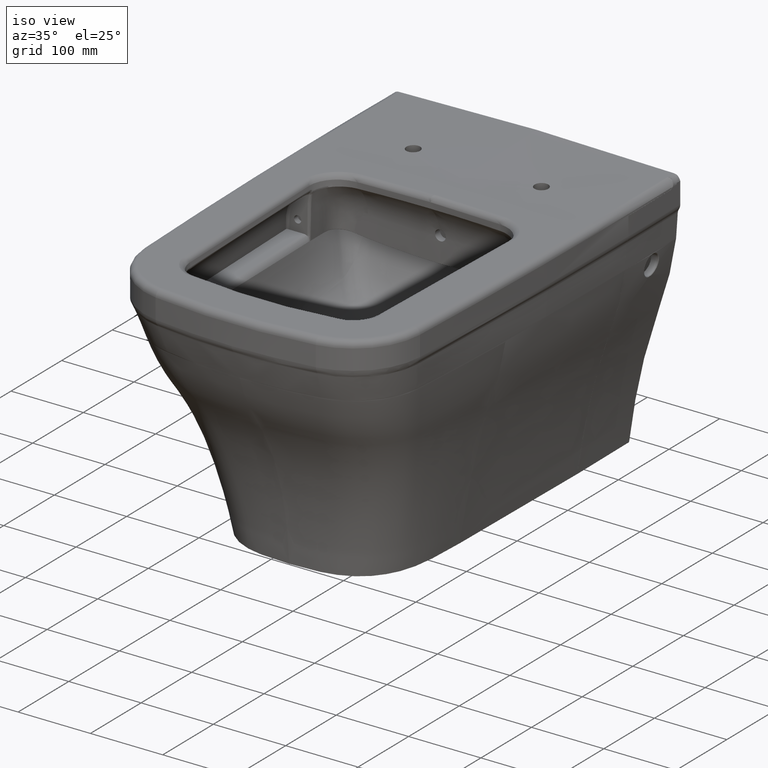
[diagram: clean part render]
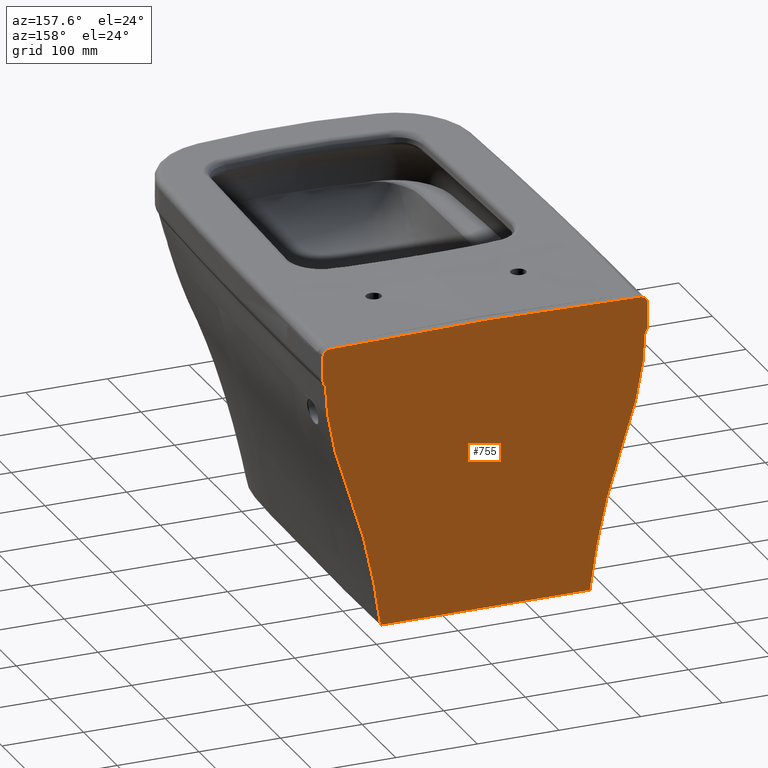
[diagram: tour spotlight — one face highlighted and labeled with its STEP entity id]
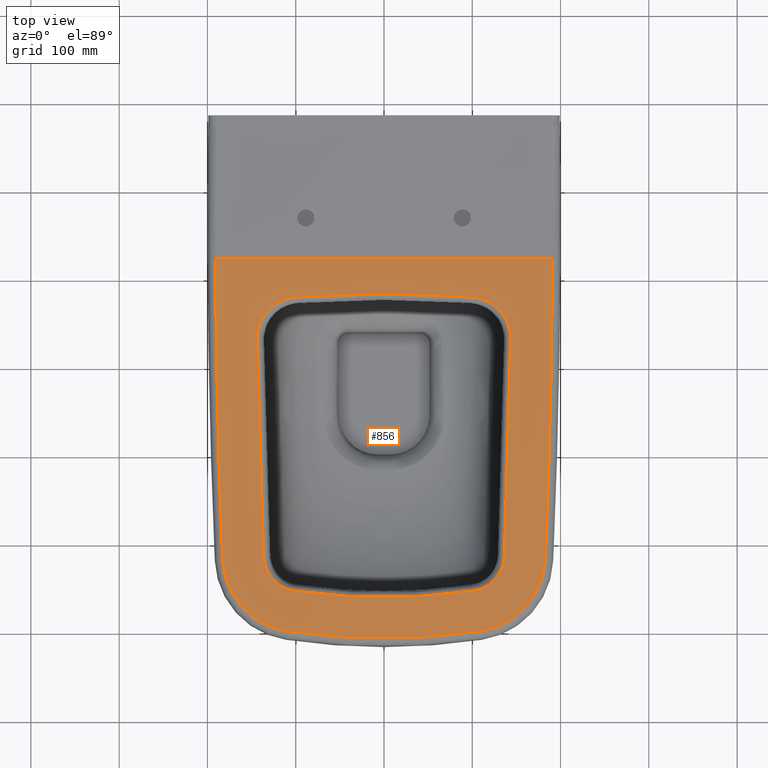
[diagram: tour spotlight — one face highlighted and labeled with its STEP entity id]
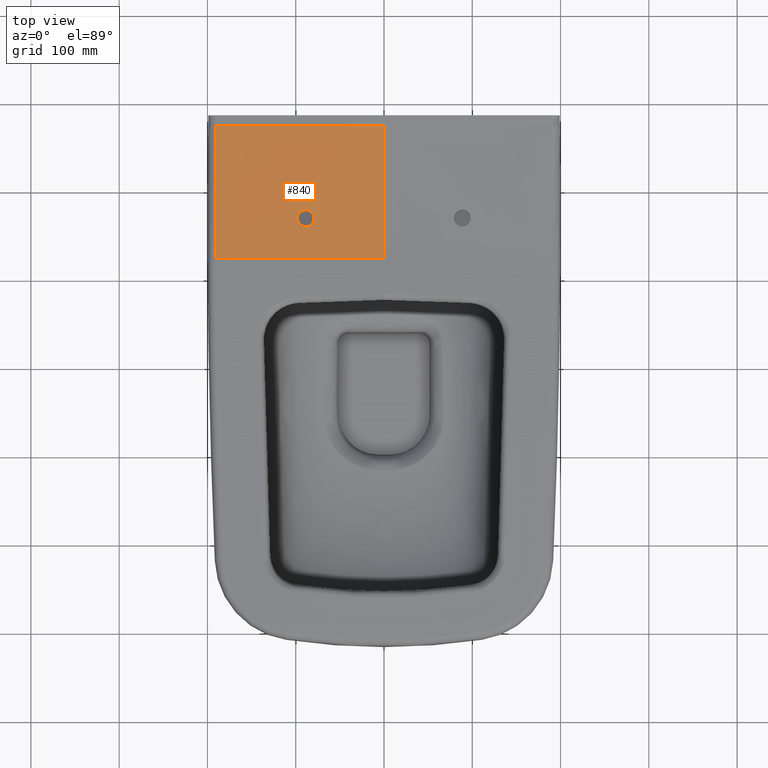
[diagram: tour spotlight — one face highlighted and labeled with its STEP entity id]
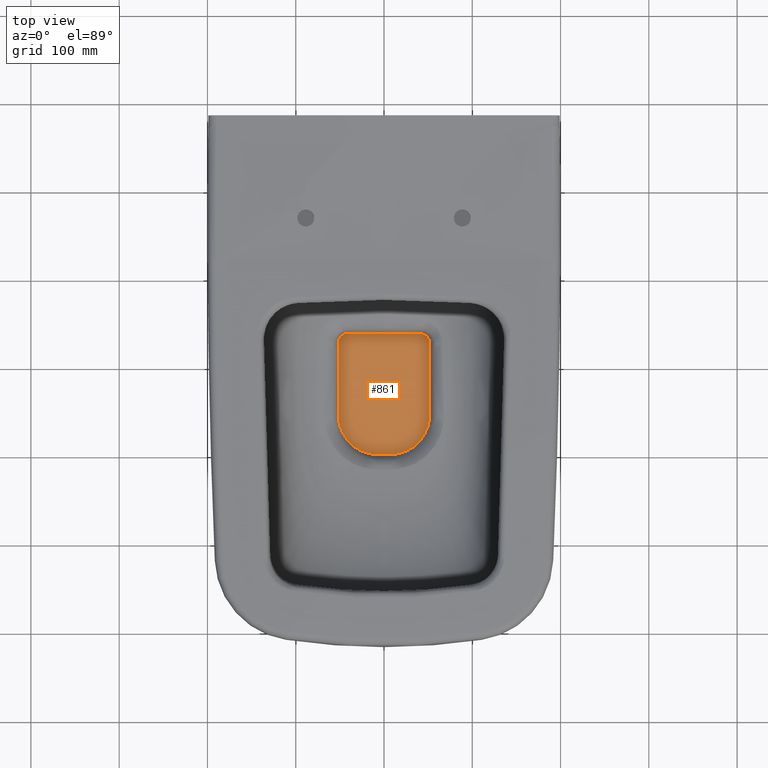
[diagram: tour spotlight — one face highlighted and labeled with its STEP entity id]
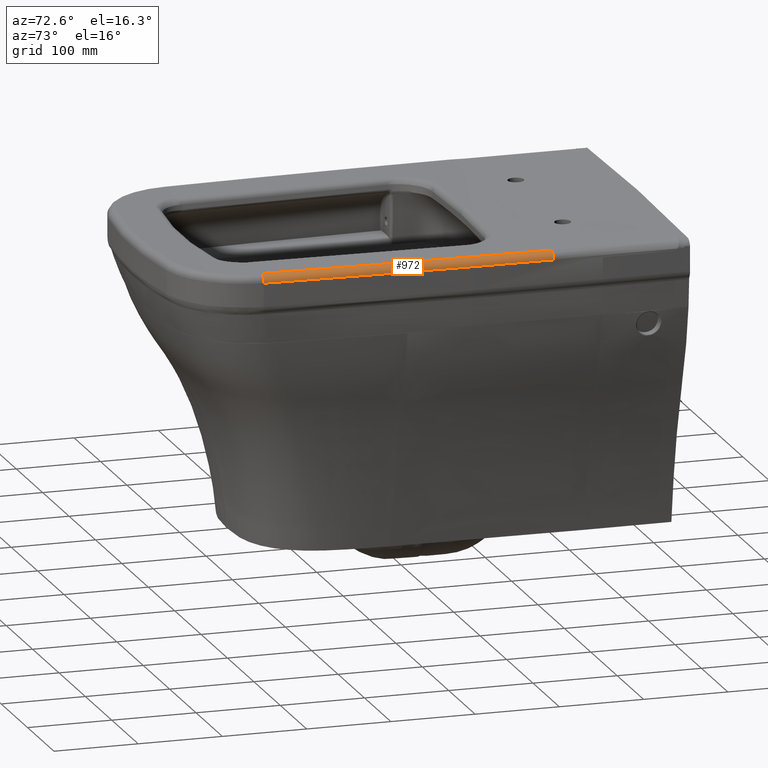
[diagram: tour spotlight — one face highlighted and labeled with its STEP entity id]
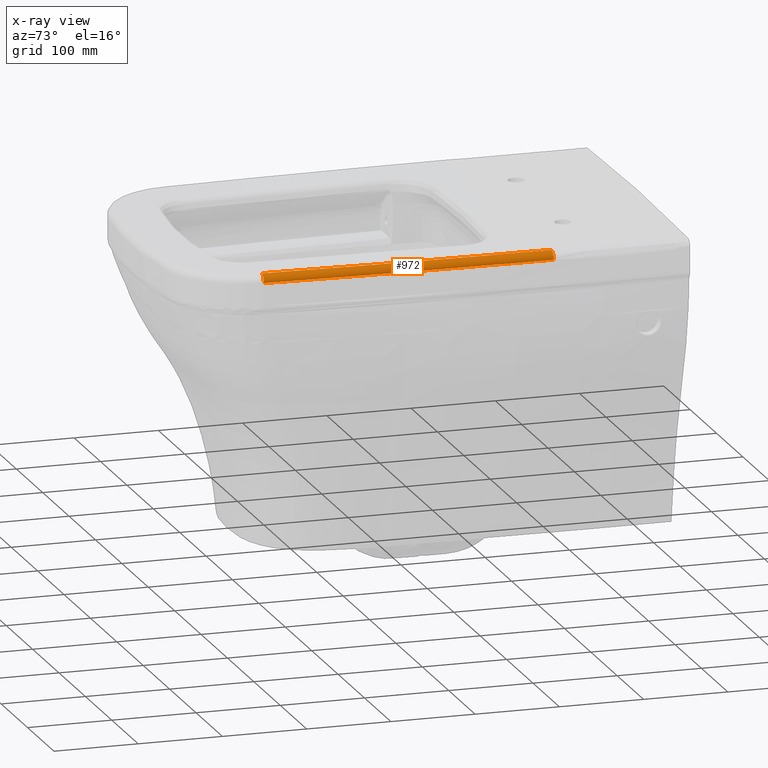
[diagram: x-ray of the same camera — body ghosted, this tour face saturated]
A machine part: a face-by-face anatomy tour. The part has 252 B-rep faces; the first image is the clean iso view, then the 5 largest visible faces are spotlighted one at a time (largest first), each with its STEP entity span.

Face 1 — auxiliary view, entity #755. In plain terms, the highlighted planar face has unit normal (0, 1, 0).
Definition (entity closure, byte-faithful):
#273=FACE_OUTER_BOUND('',#1061,.T.);
#555=PLANE('',#4179);
#662=LINE('',#4969,#700);
#665=LINE('',#6601,#703);
#666=LINE('',#6806,#704);
#673=LINE('',#23673,#711);
#674=LINE('',#23675,#712);
#700=VECTOR('',#4336,1.);
#703=VECTOR('',#4341,1.);
#704=VECTOR('',#4346,1.);
#711=VECTOR('',#4371,1.);
#712=VECTOR('',#4372,1.);
#755=ADVANCED_FACE('',(#273),#555,.T.);
#1061=EDGE_LOOP('',(#1432,#1433,#1434,#1435,#1436,#1437,#1438,#1439,#1440,
#1441,#1442,#1443,#1444,#1445,#1446,#1447,#1448));
#1432=ORIENTED_EDGE('',*,*,#3082,.F.);
#1433=ORIENTED_EDGE('',*,*,#3146,.T.);
#1434=ORIENTED_EDGE('',*,*,#3147,.T.);
#1435=ORIENTED_EDGE('',*,*,#3148,.T.);
#1436=ORIENTED_EDGE('',*,*,#3149,.T.);
#1437=ORIENTED_EDGE('',*,*,#3150,.T.);
#1438=ORIENTED_EDGE('',*,*,#3151,.T.);
#1439=ORIENTED_EDGE('',*,*,#3152,.F.);
#1440=ORIENTED_EDGE('',*,*,#3153,.T.);
#1441=ORIENTED_EDGE('',*,*,#3057,.T.);
#1442=ORIENTED_EDGE('',*,*,#3068,.F.);
#1443=ORIENTED_EDGE('',*,*,#3075,.T.);
#1444=ORIENTED_EDGE('',*,*,#3072,.F.);
#1445=ORIENTED_EDGE('',*,*,#3093,.F.);
#1446=ORIENTED_EDGE('',*,*,#3095,.F.);
#1447=ORIENTED_EDGE('',*,*,#3078,.F.);
#1448=ORIENTED_EDGE('',*,*,#3086,.F.);
#2635=VERTEX_POINT('',#4970);
#2636=VERTEX_POINT('',#4971);
#2645=VERTEX_POINT('',#5123);
#2649=VERTEX_POINT('',#6378);
#2650=VERTEX_POINT('',#6392);
#2653=VERTEX_POINT('',#6600);
#2654=VERTEX_POINT('',#6602);
#2656=VERTEX_POINT('',#6616);
#2658=VERTEX_POINT('',#6622);
#2666=VERTEX_POINT('',#6776);
#2706=VERTEX_POINT('',#23665);
#2707=VERTEX_POINT('',#23672);
#2708=VERTEX_POINT('',#23674);
#2709=VERTEX_POINT('',#23676);
#2710=VERTEX_POINT('',#23690);
#2711=VERTEX_POINT('',#23704);
#2712=VERTEX_POINT('',#23712);
#3057=EDGE_CURVE('',#2635,#2636,#662,.T.);
#3068=EDGE_CURVE('',#2645,#2636,#3712,.T.);
#3072=EDGE_CURVE('',#2649,#2650,#3715,.T.);
#3075=EDGE_CURVE('',#2645,#2650,#3717,.T.);
#3078=EDGE_CURVE('',#2653,#2654,#665,.T.);
#3082=EDGE_CURVE('',#2656,#2658,#3722,.T.);
#3086=EDGE_CURVE('',#2658,#2653,#3726,.T.);
#3093=EDGE_CURVE('',#2666,#2649,#3733,.T.);
#3095=EDGE_CURVE('',#2654,#2666,#666,.T.);
#3146=EDGE_CURVE('',#2656,#2706,#3776,.T.);
#3147=EDGE_CURVE('',#2706,#2707,#3777,.T.);
#3148=EDGE_CURVE('',#2707,#2708,#673,.T.);
#3149=EDGE_CURVE('',#2708,#2709,#674,.T.);
#3150=EDGE_CURVE('',#2709,#2710,#3778,.T.);
#3151=EDGE_CURVE('',#2710,#2711,#3779,.T.);
#3152=EDGE_CURVE('',#2712,#2711,#3780,.T.);
#3153=EDGE_CURVE('',#2712,#2635,#3781,.T.);
#3712=B_SPLINE_CURVE_WITH_KNOTS('',3,(#5125,#5126,#5127,#5128,#5129,#5130,
#5131,#5132,#5133,#5134,#5135,#5136,#5137,#5138,#5139,#5140,#5141,#5142,
#5143,#5144),.UNSPECIFIED.,.F.,.F.,(4,2,2,2,2,2,2,2,2,4),(0.,0.0625000000000001,
0.125,0.25,0.3125,0.375,0.5,0.75,0.875,1.),.UNSPECIFIED.);
#3715=B_SPLINE_CURVE_WITH_KNOTS('',3,(#6379,#6380,#6381,#6382,#6383,#6384,
#6385,#6386,#6387,#6388,#6389,#6390,#6391),.UNSPECIFIED.,.F.,.F.,(4,3,3,
3,4),(0.,0.227556644297989,0.526201724108742,0.79392497966776,1.),
 .UNSPECIFIED.);
#3717=B_SPLINE_CURVE_WITH_KNOTS('',3,(#6414,#6415,#6416,#6417,#6418,#6419,
#6420),.UNSPECIFIED.,.F.,.F.,(4,1,1,1,4),(0.,0.25151192418451,0.529408000276854,
0.807304076369195,1.),.UNSPECIFIED.);
#3722=B_SPLINE_CURVE_WITH_KNOTS('',3,(#6618,#6619,#6620,#6621),
 .UNSPECIFIED.,.F.,.F.,(4,4),(0.,1.),.UNSPECIFIED.);
#3726=B_SPLINE_CURVE_WITH_KNOTS('',3,(#6727,#6728,#6729,#6730,#6731,#6732),
 .UNSPECIFIED.,.F.,.F.,(4,2,4),(0.,0.5,1.),.UNSPECIFIED.);
#3733=B_SPLINE_CURVE_WITH_KNOTS('',3,(#6777,#6778,#6779,#6780,#6781,#6782,
#6783,#6784,#6785,#6786,#6787,#6788,#6789),.UNSPECIFIED.,.F.,.F.,(4,3,3,
3,4),(0.,0.251234334267057,0.519622181020064,0.780366170838746,1.),
 .UNSPECIFIED.);
#3776=B_SPLINE_CURVE_WITH_KNOTS('',3,(#23661,#23662,#23663,#23664),
 .UNSPECIFIED.,.F.,.F.,(4,4),(0.,1.),.UNSPECIFIED.);
#3777=B_SPLINE_CURVE_WITH_KNOTS('',3,(#23666,#23667,#23668,#23669,#23670,
#23671),.UNSPECIFIED.,.F.,.F.,(4,2,4),(0.,0.5,1.),.UNSPECIFIED.);
#3778=B_SPLINE_CURVE_WITH_KNOTS('',3,(#23677,#23678,#23679,#23680,#23681,
#23682,#23683,#23684,#23685,#23686,#23687,#23688,#23689),.UNSPECIFIED.,
 .F.,.F.,(4,3,3,3,4),(0.,0.251234334267057,0.519622181020064,0.780366170838746,
1.),.UNSPECIFIED.);
#3779=B_SPLINE_CURVE_WITH_KNOTS('',3,(#23691,#23692,#23693,#23694,#23695,
#23696,#23697,#23698,#23699,#23700,#23701,#23702,#23703),.UNSPECIFIED.,
 .F.,.F.,(4,3,3,3,4),(0.,0.227556644297989,0.526201724108742,0.79392497966776,
1.),.UNSPECIFIED.);
#3780=B_SPLINE_CURVE_WITH_KNOTS('',3,(#23705,#23706,#23707,#23708,#23709,
#23710,#23711),.UNSPECIFIED.,.F.,.F.,(4,1,1,1,4),(0.,0.25151192418451,0.529408000276854,
0.807304076369195,1.),.UNSPECIFIED.);
#3781=B_SPLINE_CURVE_WITH_KNOTS('',3,(#23713,#23714,#23715,#23716,#23717,
#23718,#23719,#23720,#23721,#23722,#23723,#23724,#23725,#23726,#23727,#23728,
#23729,#23730,#23731,#23732),.UNSPECIFIED.,.F.,.F.,(4,2,2,2,2,2,2,2,2,4),
(0.,0.0625000000000001,0.125,0.25,0.3125,0.375,0.5,0.75,0.875,1.),
 .UNSPECIFIED.);
#4179=AXIS2_PLACEMENT_3D('',#23733,#4373,#4374);
#4336=DIRECTION('',(-1.,0.,-5.64626817311097E-10));
#4341=DIRECTION('',(-1.,0.,0.));
#4346=DIRECTION('',(1.73905334577284E-12,1.37449303690041E-24,-1.));
#4371=DIRECTION('',(1.,0.,0.));
#4372=DIRECTION('',(-1.73905334577284E-12,1.37449303690041E-24,-1.));
#4373=DIRECTION('',(0.,1.,0.));
#4374=DIRECTION('',(0.,0.,1.));
#4969=CARTESIAN_POINT('',(-3.73287140572394,-19.1516366450091,-352.516830720236));
#4970=CARTESIAN_POINT('',(128.175881596622,-19.1516366450091,-352.5168307905));
#4971=CARTESIAN_POINT('',(-128.175881596622,-19.1516366450091,-352.5168307905));
#5123=CARTESIAN_POINT('',(-193.186945981987,-19.1516366450091,-80.3920429011705));
#5125=CARTESIAN_POINT('',(-193.186945981978,-19.1516366450091,-80.3920429011695));
#5126=CARTESIAN_POINT('',(-192.526668419043,-19.1516366450091,-86.1872146681649));
#5127=CARTESIAN_POINT('',(-191.69202566391,-19.1516366450091,-91.9493230786475));
#5128=CARTESIAN_POINT('',(-189.649978150868,-19.1516366450091,-103.40285627958));
#5129=CARTESIAN_POINT('',(-188.41618400478,-19.1516366450091,-109.08927707962));
#5130=CARTESIAN_POINT('',(-184.562541965806,-19.1516366450091,-126.119667814488));
#5131=CARTESIAN_POINT('',(-181.756667236041,-19.1516366450091,-137.442612741784));
#5132=CARTESIAN_POINT('',(-176.609093343651,-19.1516366450091,-154.202719167307));
#5133=CARTESIAN_POINT('',(-174.675052316592,-19.1516366450091,-159.719278960192));
#5134=CARTESIAN_POINT('',(-170.700855157187,-19.1516366450091,-170.718284244673));
#5135=CARTESIAN_POINT('',(-168.767010278996,-19.1516366450091,-176.234907096266));
#5136=CARTESIAN_POINT('',(-163.152931169172,-19.1516366450091,-192.845039590211));
#5137=CARTESIAN_POINT('',(-159.643460013409,-19.1516366450091,-203.993446817625));
#5138=CARTESIAN_POINT('',(-149.815806906382,-19.1516366450091,-237.663951695844));
#5139=CARTESIAN_POINT('',(-144.215978701187,-19.1516366450091,-260.383479791633));
#5140=CARTESIAN_POINT('',(-137.237421616818,-19.1516366450091,-294.74777168834));
#5141=CARTESIAN_POINT('',(-135.142945363315,-19.1516366450091,-306.260921252139));
#5142=CARTESIAN_POINT('',(-131.487088600085,-19.1516366450091,-329.362761255174));
#5143=CARTESIAN_POINT('',(-129.873685816217,-19.1516366450091,-340.946191279743));
#5144=CARTESIAN_POINT('',(-128.175881596622,-19.1516366450091,-352.516830790499));
#6378=CARTESIAN_POINT('',(-197.014081676712,-19.1516366450091,-43.1429258016953));
#6379=CARTESIAN_POINT('',(-197.0140816745,-19.1516366450091,-43.142925800163));
#6380=CARTESIAN_POINT('',(-196.810052255929,-19.1516366450091,-43.4375482446496));
#6381=CARTESIAN_POINT('',(-196.624551853945,-19.1516366450091,-43.745893544547));
#6382=CARTESIAN_POINT('',(-196.459857006086,-19.1516366450091,-44.0641795723999));
#6383=CARTESIAN_POINT('',(-196.243836023735,-19.1516366450091,-44.4816574795665));
#6384=CARTESIAN_POINT('',(-196.062375540646,-19.1516366450091,-44.9188762473842));
#6385=CARTESIAN_POINT('',(-195.91929916679,-19.1516366450091,-45.3666284322279));
#6386=CARTESIAN_POINT('',(-195.790948029072,-19.1516366450091,-45.7682985388436));
#6387=CARTESIAN_POINT('',(-195.692677775733,-19.1516366450091,-46.1808326987119));
#6388=CARTESIAN_POINT('',(-195.626156915286,-19.1516366450091,-46.597231382941));
#6389=CARTESIAN_POINT('',(-195.574934009631,-19.1516366450091,-46.91786990706));
#6390=CARTESIAN_POINT('',(-195.542295971083,-19.1516366450091,-47.2420297753863));
#6391=CARTESIAN_POINT('',(-195.528572079731,-19.1516366450091,-47.566443868821));
#6392=CARTESIAN_POINT('',(-195.528572085304,-19.1516366450091,-47.5664438690568));
#6414=CARTESIAN_POINT('',(-193.186945981978,-19.1516366450073,-80.3920429011694));
#6415=CARTESIAN_POINT('',(-193.531219971449,-19.1516366450078,-77.6535218106815));
#6416=CARTESIAN_POINT('',(-194.170401272627,-19.1516366450088,-71.8784982181896));
#6417=CARTESIAN_POINT('',(-194.875021806899,-19.1516366450099,-63.0458061419512));
#6418=CARTESIAN_POINT('',(-195.220798897122,-19.1516366450104,-54.8386867458318));
#6419=CARTESIAN_POINT('',(-195.439224314805,-19.1516366450108,-49.6791527619077));
#6420=CARTESIAN_POINT('',(-195.528596171016,-19.1516366450109,-47.5664448879316));
#6600=CARTESIAN_POINT('',(-198.790471555529,-19.1516366450091,-6.79487860276003));
#6601=CARTESIAN_POINT('',(-199.004713852666,-19.1516366450091,-6.79487860276003));
#6602=CARTESIAN_POINT('',(-199.004713852666,-19.1516366450091,-6.79487860276003));
#6616=CARTESIAN_POINT('',(6.77859452771527E-11,-19.1516366450091,3.60751349023347));
#6618=CARTESIAN_POINT('',(6.77859452771527E-11,-19.1516366450091,3.60751349023347));
#6619=CARTESIAN_POINT('',(-63.439308148126,-19.1516366450091,2.82464895329727));
#6620=CARTESIAN_POINT('',(-126.880008974553,-19.1516366450091,1.97105722022415));
#6621=CARTESIAN_POINT('',(-190.299709650744,-19.1516366450091,0.207888477426983));
#6622=CARTESIAN_POINT('',(-190.299709650744,-19.1516366450091,0.207888477426976));
#6727=CARTESIAN_POINT('',(-190.299709650739,-19.1516366450091,0.207888477323722));
#6728=CARTESIAN_POINT('',(-192.276347384898,-19.1516366450091,0.152934798312214));
#6729=CARTESIAN_POINT('',(-194.220761675074,-19.1516366450091,-0.572963547082999));
#6730=CARTESIAN_POINT('',(-197.287691374331,-19.1516366450091,-3.10689779775548));
#6731=CARTESIAN_POINT('',(-198.359248642495,-19.1516366450091,-4.85939056420926));
#6732=CARTESIAN_POINT('',(-198.790471555589,-19.1516366450091,-6.79487860273758));
#6776=CARTESIAN_POINT('',(-199.004713852607,-19.1516366450091,-36.7720645129363));
#6777=CARTESIAN_POINT('',(-199.004713849471,-19.1516366450091,-36.7720645129363));
#6778=CARTESIAN_POINT('',(-199.00471266273,-19.1516366450091,-37.3391166208225));
#6779=CARTESIAN_POINT('',(-198.961358836764,-19.1516366450091,-37.907799700927));
#6780=CARTESIAN_POINT('',(-198.875400829085,-19.1516366450091,-38.4682988659357));
#6781=CARTESIAN_POINT('',(-198.783589995213,-19.1516366450091,-39.0669620633879));
#6782=CARTESIAN_POINT('',(-198.642552876922,-19.1516366450091,-39.6600852815964));
#6783=CARTESIAN_POINT('',(-198.455065620622,-19.1516366450091,-40.2359979328942));
#6784=CARTESIAN_POINT('',(-198.272884384242,-19.1516366450091,-40.7956118550887));
#6785=CARTESIAN_POINT('',(-198.045716531088,-19.1516366450091,-41.3424972397189));
#6786=CARTESIAN_POINT('',(-197.777784926748,-19.1516366450091,-41.8664918963697));
#6787=CARTESIAN_POINT('',(-197.55205742419,-19.1516366450091,-42.3079478623109));
#6788=CARTESIAN_POINT('',(-197.296364154249,-19.1516366450091,-42.7353072567853));
#6789=CARTESIAN_POINT('',(-197.014082960393,-19.1516366450091,-43.1429266906591));
#6806=CARTESIAN_POINT('',(-199.004713852679,-19.1516366450091,-3.46079813450263E-10));
#23661=CARTESIAN_POINT('',(-6.77859452771527E-11,-19.1516366450091,3.60751349023347));
#23662=CARTESIAN_POINT('',(63.4393081480808,-19.1516366450091,2.82464895329783));
#23663=CARTESIAN_POINT('',(126.880008974598,-19.1516366450091,1.9710572202229));
#23664=CARTESIAN_POINT('',(190.299709650744,-19.1516366450091,0.207888477426983));
#23665=CARTESIAN_POINT('',(190.299709650744,-19.1516366450091,0.207888477426976));
#23666=CARTESIAN_POINT('',(190.299709650739,-19.1516366450091,0.207888477323722));
#23667=CARTESIAN_POINT('',(192.276347384898,-19.1516366450091,0.152934798312214));
#23668=CARTESIAN_POINT('',(194.220761675074,-19.1516366450091,-0.572963547082999));
#23669=CARTESIAN_POINT('',(197.287691374331,-19.1516366450091,-3.10689779775548));
#23670=CARTESIAN_POINT('',(198.359248642495,-19.1516366450091,-4.85939056420926));
#23671=CARTESIAN_POINT('',(198.790471555589,-19.1516366450091,-6.79487860273758));
#23672=CARTESIAN_POINT('',(198.790471555529,-19.1516366450091,-6.79487860276003));
#23673=CARTESIAN_POINT('',(199.004713852666,-19.1516366450091,-6.79487860276003));
#23674=CARTESIAN_POINT('',(199.004713852666,-19.1516366450091,-6.79487860276003));
#23675=CARTESIAN_POINT('',(199.004713852679,-19.1516366450091,-3.46079813450263E-10));
#23676=CARTESIAN_POINT('',(199.004713852607,-19.1516366450091,-36.7720645129363));
#23677=CARTESIAN_POINT('',(199.004713849471,-19.1516366450091,-36.7720645129363));
#23678=CARTESIAN_POINT('',(199.00471266273,-19.1516366450091,-37.3391166208225));
#23679=CARTESIAN_POINT('',(198.961358836764,-19.1516366450091,-37.907799700927));
#23680=CARTESIAN_POINT('',(198.875400829085,-19.1516366450091,-38.4682988659357));
#23681=CARTESIAN_POINT('',(198.783589995213,-19.1516366450091,-39.0669620633879));
#23682=CARTESIAN_POINT('',(198.642552876922,-19.1516366450091,-39.6600852815964));
#23683=CARTESIAN_POINT('',(198.455065620622,-19.1516366450091,-40.2359979328942));
#23684=CARTESIAN_POINT('',(198.272884384242,-19.1516366450091,-40.7956118550887));
#23685=CARTESIAN_POINT('',(198.045716531088,-19.1516366450091,-41.3424972397189));
#23686=CARTESIAN_POINT('',(197.777784926748,-19.1516366450091,-41.8664918963697));
#23687=CARTESIAN_POINT('',(197.55205742419,-19.1516366450091,-42.3079478623109));
#23688=CARTESIAN_POINT('',(197.296364154249,-19.1516366450091,-42.7353072567853));
#23689=CARTESIAN_POINT('',(197.014082960393,-19.1516366450091,-43.1429266906591));
#23690=CARTESIAN_POINT('',(197.014081676712,-19.1516366450091,-43.1429258016953));
#23691=CARTESIAN_POINT('',(197.0140816745,-19.1516366450091,-43.142925800163));
#23692=CARTESIAN_POINT('',(196.810052255929,-19.1516366450091,-43.4375482446496));
#23693=CARTESIAN_POINT('',(196.624551853945,-19.1516366450091,-43.745893544547));
#23694=CARTESIAN_POINT('',(196.459857006086,-19.1516366450091,-44.0641795723999));
#23695=CARTESIAN_POINT('',(196.243836023735,-19.1516366450091,-44.4816574795665));
#23696=CARTESIAN_POINT('',(196.062375540646,-19.1516366450091,-44.9188762473842));
#23697=CARTESIAN_POINT('',(195.91929916679,-19.1516366450091,-45.3666284322279));
#23698=CARTESIAN_POINT('',(195.790948029072,-19.1516366450091,-45.7682985388436));
#23699=CARTESIAN_POINT('',(195.692677775733,-19.1516366450091,-46.1808326987119));
#23700=CARTESIAN_POINT('',(195.626156915286,-19.1516366450091,-46.597231382941));
#23701=CARTESIAN_POINT('',(195.574934009631,-19.1516366450091,-46.91786990706));
#23702=CARTESIAN_POINT('',(195.542295971083,-19.1516366450091,-47.2420297753863));
#23703=CARTESIAN_POINT('',(195.528572079731,-19.1516366450091,-47.566443868821));
#23704=CARTESIAN_POINT('',(195.528572085304,-19.1516366450091,-47.5664438690568));
#23705=CARTESIAN_POINT('',(193.186945981978,-19.1516366450073,-80.3920429011694));
#23706=CARTESIAN_POINT('',(193.531219971449,-19.1516366450078,-77.6535218106815));
#23707=CARTESIAN_POINT('',(194.170401272627,-19.1516366450088,-71.8784982181896));
#23708=CARTESIAN_POINT('',(194.875021806899,-19.1516366450099,-63.0458061419512));
#23709=CARTESIAN_POINT('',(195.220798897122,-19.1516366450104,-54.8386867458318));
#23710=CARTESIAN_POINT('',(195.439224314805,-19.1516366450108,-49.6791527619077));
#23711=CARTESIAN_POINT('',(195.528596171016,-19.1516366450109,-47.5664448879316));
#23712=CARTESIAN_POINT('',(193.186945981987,-19.1516366450091,-80.3920429011705));
#23713=CARTESIAN_POINT('',(193.186945981978,-19.1516366450091,-80.3920429011695));
#23714=CARTESIAN_POINT('',(192.526668419043,-19.1516366450091,-86.1872146681649));
#23715=CARTESIAN_POINT('',(191.69202566391,-19.1516366450091,-91.9493230786475));
#23716=CARTESIAN_POINT('',(189.649978150868,-19.1516366450091,-103.40285627958));
#23717=CARTESIAN_POINT('',(188.41618400478,-19.1516366450091,-109.08927707962));
#23718=CARTESIAN_POINT('',(184.562541965806,-19.1516366450091,-126.119667814488));
#23719=CARTESIAN_POINT('',(181.756667236041,-19.1516366450091,-137.442612741784));
#23720=CARTESIAN_POINT('',(176.609093343651,-19.1516366450091,-154.202719167307));
#23721=CARTESIAN_POINT('',(174.675052316592,-19.1516366450091,-159.719278960192));
#23722=CARTESIAN_POINT('',(170.700855157187,-19.1516366450091,-170.718284244673));
#23723=CARTESIAN_POINT('',(168.767010278996,-19.1516366450091,-176.234907096266));
#23724=CARTESIAN_POINT('',(163.152931169172,-19.1516366450091,-192.845039590211));
#23725=CARTESIAN_POINT('',(159.643460013409,-19.1516366450091,-203.993446817625));
#23726=CARTESIAN_POINT('',(149.815806906382,-19.1516366450091,-237.663951695844));
#23727=CARTESIAN_POINT('',(144.215978701187,-19.1516366450091,-260.383479791633));
#23728=CARTESIAN_POINT('',(137.237421616818,-19.1516366450091,-294.74777168834));
#23729=CARTESIAN_POINT('',(135.142945363315,-19.1516366450091,-306.260921252139));
#23730=CARTESIAN_POINT('',(131.487088600085,-19.1516366450091,-329.362761255174));
#23731=CARTESIAN_POINT('',(129.873685816217,-19.1516366450091,-340.946191279743));
#23732=CARTESIAN_POINT('',(128.175881596622,-19.1516366450091,-352.516830790499));
#23733=CARTESIAN_POINT('',(-175.059992623106,-19.1516366450091,-263.727407815067));

Face 2 — top view, entity #856. In plain terms, the highlighted planar face has unit normal (0, 0, 1).
Definition (entity closure, byte-faithful):
#85=CIRCLE('',#4230,86.170786516854);
#91=CIRCLE('',#4238,8583.93238205812);
#94=CIRCLE('',#4246,738.202644386491);
#95=CIRCLE('',#4248,691.797968429393);
#98=CIRCLE('',#4253,86.170786516854);
#99=CIRCLE('',#4254,8583.93238205812);
#572=PLANE('',#4255);
#856=ADVANCED_FACE('',(#1018,#1019),#572,.T.);
#1018=FACE_BOUND('',#1167,.T.);
#1019=FACE_BOUND('',#1168,.T.);
#1167=EDGE_LOOP('',(#1957,#1958,#1959,#1960,#1961,#1962,#1963));
#1168=EDGE_LOOP('',(#1964,#1965,#1966,#1967,#1968,#1969,#1970,#1971,#1972));
#1957=ORIENTED_EDGE('',*,*,#3409,.T.);
#1958=ORIENTED_EDGE('',*,*,#3381,.F.);
#1959=ORIENTED_EDGE('',*,*,#3389,.F.);
#1960=ORIENTED_EDGE('',*,*,#3314,.F.);
#1961=ORIENTED_EDGE('',*,*,#3403,.T.);
#1962=ORIENTED_EDGE('',*,*,#3410,.T.);
#1963=ORIENTED_EDGE('',*,*,#3411,.T.);
#1964=ORIENTED_EDGE('',*,*,#3341,.T.);
#1965=ORIENTED_EDGE('',*,*,#3412,.F.);
#1966=ORIENTED_EDGE('',*,*,#3413,.F.);
#1967=ORIENTED_EDGE('',*,*,#3414,.F.);
#1968=ORIENTED_EDGE('',*,*,#3415,.F.);
#1969=ORIENTED_EDGE('',*,*,#3404,.T.);
#1970=ORIENTED_EDGE('',*,*,#3328,.T.);
#1971=ORIENTED_EDGE('',*,*,#3283,.T.);
#1972=ORIENTED_EDGE('',*,*,#3342,.T.);
#2787=VERTEX_POINT('',#34812);
#2790=VERTEX_POINT('',#34820);
#2809=VERTEX_POINT('',#35175);
#2810=VERTEX_POINT('',#35177);
#2816=VERTEX_POINT('',#35331);
#2823=VERTEX_POINT('',#35851);
#2826=VERTEX_POINT('',#35899);
#2853=VERTEX_POINT('',#37432);
#2856=VERTEX_POINT('',#37457);
#2866=VERTEX_POINT('',#38624);
#2867=VERTEX_POINT('',#38628);
#2870=VERTEX_POINT('',#38698);
#2871=VERTEX_POINT('',#38700);
#2872=VERTEX_POINT('',#38716);
#2873=VERTEX_POINT('',#38731);
#2874=VERTEX_POINT('',#38736);
#3283=EDGE_CURVE('',#2787,#2790,#3869,.T.);
#3314=EDGE_CURVE('',#2809,#2810,#85,.T.);
#3328=EDGE_CURVE('',#2816,#2787,#3897,.T.);
#3341=EDGE_CURVE('',#2823,#2826,#3907,.T.);
#3342=EDGE_CURVE('',#2790,#2823,#3908,.T.);
#3381=EDGE_CURVE('',#2856,#2853,#3946,.T.);
#3389=EDGE_CURVE('',#2810,#2856,#91,.T.);
#3403=EDGE_CURVE('',#2809,#2866,#94,.T.);
#3404=EDGE_CURVE('',#2867,#2816,#95,.T.);
#3409=EDGE_CURVE('',#2870,#2853,#3967,.T.);
#3410=EDGE_CURVE('',#2866,#2871,#98,.T.);
#3411=EDGE_CURVE('',#2871,#2870,#99,.T.);
#3412=EDGE_CURVE('',#2872,#2826,#3968,.T.);
#3413=EDGE_CURVE('',#2873,#2872,#3969,.T.);
#3414=EDGE_CURVE('',#2874,#2873,#3970,.T.);
#3415=EDGE_CURVE('',#2867,#2874,#3971,.T.);
#3869=B_SPLINE_CURVE_WITH_KNOTS('',3,(#34821,#34822,#34823,#34824),
 .UNSPECIFIED.,.F.,.F.,(4,4),(0.,1.),.UNSPECIFIED.);
#3897=B_SPLINE_CURVE_WITH_KNOTS('',3,(#35355,#35356,#35357,#35358,#35359,
#35360,#35361,#35362,#35363,#35364),.UNSPECIFIED.,.F.,.F.,(4,2,2,2,4),(0.,
0.25,0.5,0.75,1.),.UNSPECIFIED.);
#3907=B_SPLINE_CURVE_WITH_KNOTS('',3,(#35900,#35901,#35902,#35903,#35904,
#35905,#35906,#35907,#35908,#35909,#35910,#35911,#35912,#35913),
 .UNSPECIFIED.,.F.,.F.,(4,2,2,2,2,2,4),(0.,0.25,0.5,0.625,0.75,0.875,1.),
 .UNSPECIFIED.);
#3908=B_SPLINE_CURVE_WITH_KNOTS('',3,(#35992,#35993,#35994,#35995,#35996,
#35997,#35998,#35999,#36000,#36001,#36002,#36003,#36004,#36005),
 .UNSPECIFIED.,.F.,.F.,(4,2,2,2,2,2,4),(0.,0.250000000000002,0.375000000000001,
0.500000000000001,0.625000000000001,0.75,1.),.UNSPECIFIED.);
#3946=B_SPLINE_CURVE_WITH_KNOTS('',3,(#37458,#37459,#37460,#37461,#37462,
#37463,#37464,#37465,#37466,#37467,#37468),.UNSPECIFIED.,.F.,.F.,(4,1,1,
1,1,1,1,1,4),(0.,0.0312498276535618,0.0624998332131238,0.124999844332249,
0.249999866570499,0.37499988880875,0.499999911047,0.749999955523499,1.),
 .UNSPECIFIED.);
#3967=B_SPLINE_CURVE_WITH_KNOTS('',3,(#38694,#38695,#38696,#38697),
 .UNSPECIFIED.,.F.,.F.,(4,4),(0.,1.),.UNSPECIFIED.);
#3968=B_SPLINE_CURVE_WITH_KNOTS('',3,(#38702,#38703,#38704,#38705,#38706,
#38707,#38708,#38709,#38710,#38711,#38712,#38713,#38714,#38715),
 .UNSPECIFIED.,.F.,.F.,(4,2,2,2,2,2,4),(0.,0.25,0.5,0.625,0.75,0.875,1.),
 .UNSPECIFIED.);
#3969=B_SPLINE_CURVE_WITH_KNOTS('',3,(#38717,#38718,#38719,#38720,#38721,
#38722,#38723,#38724,#38725,#38726,#38727,#38728,#38729,#38730),
 .UNSPECIFIED.,.F.,.F.,(4,2,2,2,2,2,4),(0.,0.250000000000002,0.375000000000001,
0.500000000000001,0.625000000000001,0.75,1.),.UNSPECIFIED.);
#3970=B_SPLINE_CURVE_WITH_KNOTS('',3,(#38732,#38733,#38734,#38735),
 .UNSPECIFIED.,.F.,.F.,(4,4),(0.,1.),.UNSPECIFIED.);
#3971=B_SPLINE_CURVE_WITH_KNOTS('',3,(#38737,#38738,#38739,#38740,#38741,
#38742,#38743,#38744,#38745,#38746),.UNSPECIFIED.,.F.,.F.,(4,2,2,2,4),(0.,
0.25,0.5,0.75,1.),.UNSPECIFIED.);
#4230=AXIS2_PLACEMENT_3D('',#35176,#4482,#4483);
#4238=AXIS2_PLACEMENT_3D('',#37684,#4499,#4500);
#4246=AXIS2_PLACEMENT_3D('',#38625,#4515,#4516);
#4248=AXIS2_PLACEMENT_3D('',#38627,#4519,#4520);
#4253=AXIS2_PLACEMENT_3D('',#38699,#4529,#4530);
#4254=AXIS2_PLACEMENT_3D('',#38701,#4531,#4532);
#4255=AXIS2_PLACEMENT_3D('',#38747,#4533,#4534);
#4482=DIRECTION('',(3.47810669154568E-12,5.49797214760162E-24,-1.));
#4483=DIRECTION('',(-1.,-3.16172964476454E-12,-3.47810669154568E-12));
#4499=DIRECTION('',(3.47810669154568E-12,5.49797214760162E-24,-1.));
#4500=DIRECTION('',(-1.,-3.16147356158418E-12,-3.47810669154568E-12));
#4515=DIRECTION('',(0.,0.,1.));
#4516=DIRECTION('',(-1.,0.,0.));
#4519=DIRECTION('',(0.,0.,-1.));
#4520=DIRECTION('',(1.,0.,0.));
#4529=DIRECTION('',(3.47810669154568E-12,-5.49797214760162E-24,1.));
#4530=DIRECTION('',(1.,-3.16172964476454E-12,-3.47810669154568E-12));
#4531=DIRECTION('',(3.47810669154568E-12,-5.49797214760162E-24,1.));
#4532=DIRECTION('',(1.,-3.16147356158418E-12,-3.47810669154568E-12));
#4533=DIRECTION('',(0.,0.,1.));
#4534=DIRECTION('',(-1.,0.,0.));
#34812=CARTESIAN_POINT('',(-136.480799462481,-518.90769797121,0.));
#34820=CARTESIAN_POINT('',(-143.594559421884,-272.684752677924,0.));
#34821=CARTESIAN_POINT('',(-136.480799462481,-518.90769797121,0.));
#34822=CARTESIAN_POINT('',(-140.036081287814,-436.871016866229,0.));
#34823=CARTESIAN_POINT('',(-142.407533131927,-354.789856768963,0.));
#34824=CARTESIAN_POINT('',(-143.594559421884,-272.684752677924,0.));
#35175=CARTESIAN_POINT('',(-109.460583762693,-603.987809265406,-3.80715588848839E-10));
#35176=CARTESIAN_POINT('',(-96.6831917184934,-518.769602868639,-3.36274456078938E-10));
#35177=CARTESIAN_POINT('',(-182.77247551706,-522.516556829258,-6.3570217012913E-10));
#35331=CARTESIAN_POINT('',(-100.913907671618,-558.343808997294,0.));
#35355=CARTESIAN_POINT('',(-100.913907671618,-558.343808997294,0.));
#35356=CARTESIAN_POINT('',(-105.709552976814,-557.636695286524,0.));
#35357=CARTESIAN_POINT('',(-110.261036727122,-556.13980849322,0.));
#35358=CARTESIAN_POINT('',(-118.802713308626,-551.577725355206,0.));
#35359=CARTESIAN_POINT('',(-122.584959331393,-548.619214816895,0.));
#35360=CARTESIAN_POINT('',(-129.059768235457,-541.433478109108,0.));
#35361=CARTESIAN_POINT('',(-131.615773514485,-537.350025035941,0.));
#35362=CARTESIAN_POINT('',(-135.25544186417,-528.407465556468,0.));
#35363=CARTESIAN_POINT('',(-136.270921534718,-523.750545733133,0.));
#35364=CARTESIAN_POINT('',(-136.480799462481,-518.90769797121,0.));
#35851=CARTESIAN_POINT('',(-99.5554166797557,-225.077443861505,0.));
#35899=CARTESIAN_POINT('',(0.,-221.475460870995,0.));
#35900=CARTESIAN_POINT('',(-99.5554166804993,-225.077443850967,0.));
#35901=CARTESIAN_POINT('',(-91.2732311090537,-224.49319465217,-1.08333559371782E-30));
#35902=CARTESIAN_POINT('',(-82.9983321730166,-223.775898703424,4.33680868994202E-15));
#35903=CARTESIAN_POINT('',(-66.4118237738991,-223.011604692153,4.33680868994202E-15));
#35904=CARTESIAN_POINT('',(-58.1071204452636,-222.861489671443,-8.67361737988402E-16));
#35905=CARTESIAN_POINT('',(-45.6609206018623,-222.33943995127,-8.67361737988403E-16));
#35906=CARTESIAN_POINT('',(-41.5128376450967,-222.13771730376,2.60208521396521E-15));
#35907=CARTESIAN_POINT('',(-33.2133305377027,-221.876618458197,2.60208521396521E-15));
#35908=CARTESIAN_POINT('',(-29.061305811274,-221.84282887269,9.62964972193618E-32));
#35909=CARTESIAN_POINT('',(-20.7547194492415,-221.883330833302,0.));
#35910=CARTESIAN_POINT('',(-16.601396002041,-221.905756608537,0.));
#35911=CARTESIAN_POINT('',(-8.30149318326845,-221.655719928464,0.));
#35912=CARTESIAN_POINT('',(-4.15548410658797,-221.357730798093,0.));
#35913=CARTESIAN_POINT('',(2.18719012974337E-14,-221.475460870995,0.));
#35992=CARTESIAN_POINT('',(-143.594559421884,-272.684752677924,0.));
#35993=CARTESIAN_POINT('',(-143.68145985114,-266.673960120106,0.));
#35994=CARTESIAN_POINT('',(-142.594837959997,-260.70205341649,0.));
#35995=CARTESIAN_POINT('',(-139.386663927776,-252.400456337665,0.));
#35996=CARTESIAN_POINT('',(-138.031884194927,-249.693926390414,0.));
#35997=CARTESIAN_POINT('',(-134.872471903453,-244.650475311322,0.));
#35998=CARTESIAN_POINT('',(-133.069692684636,-242.300096250334,0.));
#35999=CARTESIAN_POINT('',(-129.020084370782,-237.940420902467,0.));
#36000=CARTESIAN_POINT('',(-126.758928446778,-235.928424016476,0.));
#36001=CARTESIAN_POINT('',(-121.974468391744,-232.418318254639,0.));
#36002=CARTESIAN_POINT('',(-119.431497194326,-230.895075635304,0.));
#36003=CARTESIAN_POINT('',(-111.342280881182,-227.033202799307,0.));
#36004=CARTESIAN_POINT('',(-105.550655214422,-225.500492575527,0.));
#36005=CARTESIAN_POINT('',(-99.5554166797557,-225.077443861505,0.));
#37432=CARTESIAN_POINT('',(0.,-181.294382022472,0.));
#37457=CARTESIAN_POINT('',(-190.862953445532,-181.294367293828,-0.000335239785720158));
#37458=CARTESIAN_POINT('',(-190.83164351418,-181.294445168426,-0.000124946130723078));
#37459=CARTESIAN_POINT('',(-188.843872192095,-181.291695685087,0.0133159566975989));
#37460=CARTESIAN_POINT('',(-184.868155535319,-181.295107176757,-0.00662307135095981));
#37461=CARTESIAN_POINT('',(-176.916880887849,-181.29347865273,0.00346811610464441));
#37462=CARTESIAN_POINT('',(-163.002052037029,-181.294667031086,-0.00164047412355926));
#37463=CARTESIAN_POINT('',(-143.123762168183,-181.293788029572,0.000532774902726698));
#37464=CARTESIAN_POINT('',(-119.269799709014,-181.294067926237,2.48553709827189E-5));
#37465=CARTESIAN_POINT('',(-87.4645197883597,-181.294146679107,8.77896776082991E-5));
#37466=CARTESIAN_POINT('',(-47.7079198849972,-181.294177044511,3.4556798545893E-5));
#37467=CARTESIAN_POINT('',(-15.9026399614678,-181.294212802211,1.40980661733333E-5));
#37468=CARTESIAN_POINT('',(1.43289381584903E-10,-181.294230681062,3.8666445689809E-6));
#37684=CARTESIAN_POINT('',(8393.0409853729,-149.262456028519,2.91918920136418E-8));
#38624=CARTESIAN_POINT('',(109.460583762693,-603.987809265406,-3.80715588848839E-10));
#38625=CARTESIAN_POINT('',(0.,126.054329779749,0.));
#38627=CARTESIAN_POINT('',(0.,126.054329779749,0.));
#38628=CARTESIAN_POINT('',(100.913907671618,-558.343808997294,0.));
#38694=CARTESIAN_POINT('',(190.831644285742,-181.294293820542,0.));
#38695=CARTESIAN_POINT('',(127.221096190447,-181.294323221185,0.));
#38696=CARTESIAN_POINT('',(63.6105480951518,-181.294352621829,0.));
#38697=CARTESIAN_POINT('',(-1.43289485146106E-10,-181.294382022472,0.));
#38698=CARTESIAN_POINT('',(190.862953445532,-181.294367293828,-0.000335239785720158));
#38699=CARTESIAN_POINT('',(96.6831917184934,-518.769602868639,-3.36274456078938E-10));
#38700=CARTESIAN_POINT('',(182.77247551706,-522.516556829258,-6.3570217012913E-10));
#38701=CARTESIAN_POINT('',(-8393.0409853729,-149.262456028519,2.91918920136418E-8));
#38702=CARTESIAN_POINT('',(99.5554166804993,-225.077443850967,0.));
#38703=CARTESIAN_POINT('',(91.2732311090537,-224.49319465217,-1.08333559371782E-30));
#38704=CARTESIAN_POINT('',(82.9983321730166,-223.775898703424,4.33680868994202E-15));
#38705=CARTESIAN_POINT('',(66.4118237738991,-223.011604692153,4.33680868994202E-15));
#38706=CARTESIAN_POINT('',(58.1071204452636,-222.861489671443,-8.67361737988402E-16));
#38707=CARTESIAN_POINT('',(45.6609206018623,-222.33943995127,-8.67361737988403E-16));
#38708=CARTESIAN_POINT('',(41.5128376450967,-222.13771730376,2.60208521396521E-15));
#38709=CARTESIAN_POINT('',(33.2133305377027,-221.876618458197,2.60208521396521E-15));
#38710=CARTESIAN_POINT('',(29.061305811274,-221.84282887269,9.62964972193618E-32));
#38711=CARTESIAN_POINT('',(20.7547194492415,-221.883330833302,0.));
#38712=CARTESIAN_POINT('',(16.601396002041,-221.905756608537,0.));
#38713=CARTESIAN_POINT('',(8.30149318326845,-221.655719928464,0.));
#38714=CARTESIAN_POINT('',(4.15548410658797,-221.357730798093,0.));
#38715=CARTESIAN_POINT('',(-2.18719012974337E-14,-221.475460870995,0.));
#38716=CARTESIAN_POINT('',(99.5554166797557,-225.077443861505,0.));
#38717=CARTESIAN_POINT('',(143.594559421884,-272.684752677924,0.));
#38718=CARTESIAN_POINT('',(143.68145985114,-266.673960120106,0.));
#38719=CARTESIAN_POINT('',(142.594837959997,-260.70205341649,0.));
#38720=CARTESIAN_POINT('',(139.386663927776,-252.400456337665,0.));
#38721=CARTESIAN_POINT('',(138.031884194927,-249.693926390414,0.));
#38722=CARTESIAN_POINT('',(134.872471903453,-244.650475311322,0.));
#38723=CARTESIAN_POINT('',(133.069692684636,-242.300096250334,0.));
#38724=CARTESIAN_POINT('',(129.020084370782,-237.940420902467,0.));
#38725=CARTESIAN_POINT('',(126.758928446778,-235.928424016476,0.));
#38726=CARTESIAN_POINT('',(121.974468391744,-232.418318254639,0.));
#38727=CARTESIAN_POINT('',(119.431497194326,-230.895075635304,0.));
#38728=CARTESIAN_POINT('',(111.342280881182,-227.033202799307,0.));
#38729=CARTESIAN_POINT('',(105.550655214422,-225.500492575527,0.));
#38730=CARTESIAN_POINT('',(99.5554166797557,-225.077443861505,0.));
#38731=CARTESIAN_POINT('',(143.594559421884,-272.684752677924,0.));
#38732=CARTESIAN_POINT('',(136.480799462481,-518.90769797121,0.));
#38733=CARTESIAN_POINT('',(140.036081287814,-436.871016866229,0.));
#38734=CARTESIAN_POINT('',(142.407533131927,-354.789856768963,0.));
#38735=CARTESIAN_POINT('',(143.594559421884,-272.684752677924,0.));
#38736=CARTESIAN_POINT('',(136.480799462481,-518.90769797121,0.));
#38737=CARTESIAN_POINT('',(100.913907671618,-558.343808997294,0.));
#38738=CARTESIAN_POINT('',(105.709552976814,-557.636695286524,0.));
#38739=CARTESIAN_POINT('',(110.261036727122,-556.13980849322,0.));
#38740=CARTESIAN_POINT('',(118.802713308626,-551.577725355206,0.));
#38741=CARTESIAN_POINT('',(122.584959331393,-548.619214816895,0.));
#38742=CARTESIAN_POINT('',(129.059768235457,-541.433478109108,0.));
#38743=CARTESIAN_POINT('',(131.615773514485,-537.350025035941,0.));
#38744=CARTESIAN_POINT('',(135.25544186417,-528.407465556468,0.));
#38745=CARTESIAN_POINT('',(136.270921534718,-523.750545733133,0.));
#38746=CARTESIAN_POINT('',(136.480799462481,-518.90769797121,0.));
#38747=CARTESIAN_POINT('',(1.42112634768657E-9,-1184.1350092452,0.));

Face 3 — top view, entity #840. In plain terms, the highlighted face is a freeform B-spline surface patch.
Definition (entity closure, byte-faithful):
#509=B_SPLINE_SURFACE_WITH_KNOTS('',3,3,((#37469,#37470,#37471,#37472,#37473,
#37474,#37475),(#37476,#37477,#37478,#37479,#37480,#37481,#37482),(#37483,
#37484,#37485,#37486,#37487,#37488,#37489),(#37490,#37491,#37492,#37493,
#37494,#37495,#37496),(#37497,#37498,#37499,#37500,#37501,#37502,#37503),
(#37504,#37505,#37506,#37507,#37508,#37509,#37510),(#37511,#37512,#37513,
#37514,#37515,#37516,#37517),(#37518,#37519,#37520,#37521,#37522,#37523,
#37524),(#37525,#37526,#37527,#37528,#37529,#37530,#37531),(#37532,#37533,
#37534,#37535,#37536,#37537,#37538),(#37539,#37540,#37541,#37542,#37543,
#37544,#37545),(#37546,#37547,#37548,#37549,#37550,#37551,#37552)),
 .UNSPECIFIED.,.F.,.F.,.F.,(4,1,1,1,1,1,1,1,1,4),(4,2,1,4),(0.,0.236774512525756,
0.473549025051511,0.591936281314389,0.710323537577267,0.828710793840145,
0.887904421971584,0.917501236037303,0.947098050103023,1.),(0.,0.0714966303316011,
0.990352018425019,1.),.UNSPECIFIED.);
#840=ADVANCED_FACE('',(#1014,#1015),#509,.T.);
#1014=FACE_BOUND('',#1149,.T.);
#1015=FACE_BOUND('',#1150,.T.);
#1149=EDGE_LOOP('',(#1857));
#1150=EDGE_LOOP('',(#1858,#1859,#1860,#1861,#1862));
#1857=ORIENTED_EDGE('',*,*,#3037,.T.);
#1858=ORIENTED_EDGE('',*,*,#3377,.T.);
#1859=ORIENTED_EDGE('',*,*,#3378,.T.);
#1860=ORIENTED_EDGE('',*,*,#3379,.T.);
#1861=ORIENTED_EDGE('',*,*,#3380,.T.);
#1862=ORIENTED_EDGE('',*,*,#3381,.T.);
#2615=VERTEX_POINT('',#4822);
#2660=VERTEX_POINT('',#6642);
#2853=VERTEX_POINT('',#37432);
#2854=VERTEX_POINT('',#37433);
#2855=VERTEX_POINT('',#37440);
#2856=VERTEX_POINT('',#37457);
#3037=EDGE_CURVE('',#2615,#2615,#3692,.T.);
#3377=EDGE_CURVE('',#2853,#2854,#3942,.T.);
#3378=EDGE_CURVE('',#2854,#2855,#3943,.T.);
#3379=EDGE_CURVE('',#2855,#2660,#3944,.T.);
#3380=EDGE_CURVE('',#2660,#2856,#3945,.T.);
#3381=EDGE_CURVE('',#2856,#2853,#3946,.T.);
#3692=B_SPLINE_CURVE_WITH_KNOTS('',3,(#4804,#4805,#4806,#4807,#4808,#4809,
#4810,#4811,#4812,#4813,#4814,#4815,#4816,#4817,#4818,#4819,#4820,#4821),
 .UNSPECIFIED.,.T.,.F.,(2,2,2,2,2,2,2,2,2,2,2),(-0.125,0.,0.125,0.25,0.375,
0.5,0.625,0.75,0.875,1.,1.125),.UNSPECIFIED.);
#3942=B_SPLINE_CURVE_WITH_KNOTS('',3,(#37428,#37429,#37430,#37431),
 .UNSPECIFIED.,.F.,.F.,(4,4),(0.,1.),.UNSPECIFIED.);
#3943=B_SPLINE_CURVE_WITH_KNOTS('',3,(#37434,#37435,#37436,#37437,#37438,
#37439),.UNSPECIFIED.,.F.,.F.,(4,2,4),(0.,0.568950576737245,1.),
 .UNSPECIFIED.);
#3944=B_SPLINE_CURVE_WITH_KNOTS('',3,(#37441,#37442,#37443,#37444,#37445,
#37446,#37447,#37448,#37449,#37450),.UNSPECIFIED.,.F.,.F.,(4,3,3,4),(0.,
0.400920549629792,0.700454338484179,1.),.UNSPECIFIED.);
#3945=B_SPLINE_CURVE_WITH_KNOTS('',3,(#37451,#37452,#37453,#37454,#37455,
#37456),.UNSPECIFIED.,.F.,.F.,(4,2,4),(0.,0.5,1.),.UNSPECIFIED.);
#3946=B_SPLINE_CURVE_WITH_KNOTS('',3,(#37458,#37459,#37460,#37461,#37462,
#37463,#37464,#37465,#37466,#37467,#37468),.UNSPECIFIED.,.F.,.F.,(4,1,1,
1,1,1,1,1,4),(0.,0.0312498276535618,0.0624998332131238,0.124999844332249,
0.249999866570499,0.37499988880875,0.499999911047,0.749999955523499,1.),
 .UNSPECIFIED.);
#4804=CARTESIAN_POINT('',(-79.7939145389922,-131.334665604855,0.879578006653464));
#4805=CARTESIAN_POINT('',(-78.7418676735419,-136.289847881895,0.798643768688045));
#4806=CARTESIAN_POINT('',(-79.2439055770506,-138.928236861141,0.749612880761388));
#4807=CARTESIAN_POINT('',(-81.9693263588546,-143.122627899761,0.664681580610798));
#4808=CARTESIAN_POINT('',(-84.2020292862875,-144.65703874221,0.629291841497101));
#4809=CARTESIAN_POINT('',(-89.0932941351193,-145.698608965801,0.591909817882115));
#4810=CARTESIAN_POINT('',(-91.7392824861787,-145.220829427433,0.58931598329124));
#4811=CARTESIAN_POINT('',(-95.9846863400063,-142.465660297757,0.61468878375143));
#4812=CARTESIAN_POINT('',(-97.4988945448676,-140.24423342404,0.641938588594817));
#4813=CARTESIAN_POINT('',(-98.5399044083224,-135.349615389365,0.711882135167199));
#4814=CARTESIAN_POINT('',(-98.0465040560827,-132.68608792722,0.754969844599794));
#4815=CARTESIAN_POINT('',(-95.3271027704972,-128.491432412505,0.836007741206276));
#4816=CARTESIAN_POINT('',(-93.1171346792449,-126.956675942087,0.874057179751938));
#4817=CARTESIAN_POINT('',(-88.1724978811394,-125.901271112044,0.921971395877837));
#4818=CARTESIAN_POINT('',(-85.5284118692886,-126.399005159478,0.930536324556056));
#4819=CARTESIAN_POINT('',(-81.3280036639808,-129.123346009763,0.909340937303729));
#4820=CARTESIAN_POINT('',(-79.7939145389922,-131.334665604855,0.879578006653464));
#4821=CARTESIAN_POINT('',(-78.7418676735419,-136.289847881895,0.798643768688045));
#4822=CARTESIAN_POINT('',(-79.2678911062671,-133.812256743375,0.839110887670754));
#6642=CARTESIAN_POINT('',(-190.324655173948,-31.1036366449633,0.200097986878431));
#37428=CARTESIAN_POINT('',(-5.50756478379933E-10,-181.294382022472,4.22585763363305E-15));
#37429=CARTESIAN_POINT('',(-5.22261899281473E-10,-138.965212226002,1.08147437579593));
#37430=CARTESIAN_POINT('',(-4.62661619683451E-10,-96.6355557542345,2.14895942496482));
#37431=CARTESIAN_POINT('',(-4.64883626898158E-10,-54.3027235719797,3.07485239795502));
#37432=CARTESIAN_POINT('',(0.,-181.294382022472,0.));
#37433=CARTESIAN_POINT('',(-5.80090110482272E-11,-54.3027235719796,3.0748523979507));
#37434=CARTESIAN_POINT('',(-2.36862870118054E-6,-54.3027235719638,3.07485237280102));
#37435=CARTESIAN_POINT('',(-2.36810494872765E-6,-49.9030632384918,3.17108062743937));
#37436=CARTESIAN_POINT('',(-2.36753857302449E-6,-45.5033686026171,3.26577947677148));
#37437=CARTESIAN_POINT('',(-2.36646801913245E-6,-37.7703033120917,3.42928435899033));
#37438=CARTESIAN_POINT('',(-2.36600655749471E-6,-34.4369699785574,3.49976304417141));
#37439=CARTESIAN_POINT('',(-2.36554509585697E-6,-31.1036366450232,3.57024172935249));
#37440=CARTESIAN_POINT('',(-6.51354099676381E-11,-31.1036366450092,3.57024175827782));
#37441=CARTESIAN_POINT('',(6.5135409967638E-11,-31.1036366450092,3.57024175827782));
#37442=CARTESIAN_POINT('',(-25.4374037799418,-31.1036366450092,3.2592109056326));
#37443=CARTESIAN_POINT('',(-50.87480417389,-31.1036366450092,2.94290633558905));
#37444=CARTESIAN_POINT('',(-76.3112397361202,-31.1036366450092,2.5608106055421));
#37445=CARTESIAN_POINT('',(-95.3151612960836,-31.1036366450092,2.27534146956807));
#37446=CARTESIAN_POINT('',(-114.318626342613,-31.1036366450092,1.9531307346634));
#37447=CARTESIAN_POINT('',(-133.32080930062,-31.1036366450092,1.5689821758333));
#37448=CARTESIAN_POINT('',(-152.323690574951,-31.1036366450092,1.18481949982468));
#37449=CARTESIAN_POINT('',(-171.325253622626,-31.1036366450092,0.729344607313483));
#37450=CARTESIAN_POINT('',(-190.324794376443,-31.1036366450092,0.205389616870309));
#37451=CARTESIAN_POINT('',(-190.324794376442,-31.1036366450092,0.205389616870338));
#37452=CARTESIAN_POINT('',(-190.378829213233,-35.3773442967162,0.199433912671004));
#37453=CARTESIAN_POINT('',(-190.580383749872,-50.0292907229597,0.179507755335192));
#37454=CARTESIAN_POINT('',(-190.953681785346,-100.092496350063,0.111324857643851));
#37455=CARTESIAN_POINT('',(-191.124694504365,-135.50442189057,0.0631857627233942));
#37456=CARTESIAN_POINT('',(-190.894413202047,-181.294382022472,-0.000556941101212783));
#37457=CARTESIAN_POINT('',(-190.862953445532,-181.294367293828,-0.000335239785720158));
#37458=CARTESIAN_POINT('',(-190.83164351418,-181.294445168426,-0.000124946130723078));
#37459=CARTESIAN_POINT('',(-188.843872192095,-181.291695685087,0.0133159566975989));
#37460=CARTESIAN_POINT('',(-184.868155535319,-181.295107176757,-0.00662307135095981));
#37461=CARTESIAN_POINT('',(-176.916880887849,-181.29347865273,0.00346811610464441));
#37462=CARTESIAN_POINT('',(-163.002052037029,-181.294667031086,-0.00164047412355926));
#37463=CARTESIAN_POINT('',(-143.123762168183,-181.293788029572,0.000532774902726698));
#37464=CARTESIAN_POINT('',(-119.269799709014,-181.294067926237,2.48553709827189E-5));
#37465=CARTESIAN_POINT('',(-87.4645197883597,-181.294146679107,8.77896776082991E-5));
#37466=CARTESIAN_POINT('',(-47.7079198849972,-181.294177044511,3.4556798545893E-5));
#37467=CARTESIAN_POINT('',(-15.9026399614678,-181.294212802211,1.40980661733333E-5));
#37468=CARTESIAN_POINT('',(1.43289381584903E-10,-181.294230681062,3.8666445689809E-6));
#37469=CARTESIAN_POINT('',(6.55021635282896E-11,-30.1946181713791,3.58946168647024));
#37470=CARTESIAN_POINT('',(6.40350421276773E-11,-33.8309576627947,3.51257635802454));
#37471=CARTESIAN_POINT('',(6.2567920727065E-11,-37.4672971542103,3.43569102957884));
#37472=CARTESIAN_POINT('',(4.22457512257598E-11,-87.8368899350084,2.37069621988898));
#37473=CARTESIAN_POINT('',(1.12038993891064E-10,-135.056587472261,1.18151558796752));
#37474=CARTESIAN_POINT('',(1.43956885534126E-10,-182.275679396529,-0.0250731966055603));
#37475=CARTESIAN_POINT('',(1.44284494524251E-10,-182.766327986161,-0.0376125945287851));
#37476=CARTESIAN_POINT('',(-15.8580548662966,-30.1947208231463,3.39457224589279));
#37477=CARTESIAN_POINT('',(-15.8614198541442,-33.8310260972986,3.32159087484482));
#37478=CARTESIAN_POINT('',(-15.8647848419918,-37.467331371451,3.24860950379686));
#37479=CARTESIAN_POINT('',(-15.9113957450704,-87.8364501839579,2.2376912578662));
#37480=CARTESIAN_POINT('',(-15.9230429655465,-135.05641773848,1.11506264784058));
#37481=CARTESIAN_POINT('',(-15.9022104659821,-182.275664753655,-0.0236523515674379));
#37482=CARTESIAN_POINT('',(-15.9019905276177,-182.766314942543,-0.0354863388620437));
#37483=CARTESIAN_POINT('',(-47.5744713790209,-30.1949261266806,3.0006665883335));
#37484=CARTESIAN_POINT('',(-47.5845589600894,-33.8311629663065,2.93559244040882));
#37485=CARTESIAN_POINT('',(-47.5946465411579,-37.4673998059324,2.87051829248414));
#37486=CARTESIAN_POINT('',(-47.7343769903533,-87.8355706818567,1.96912876621424));
#37487=CARTESIAN_POINT('',(-47.7692227781782,-135.056078270918,0.980893884774915));
#37488=CARTESIAN_POINT('',(-47.7066294058061,-182.275635467907,-0.0207838595083691));
#37489=CARTESIAN_POINT('',(-47.7059685944994,-182.766288855304,-0.0311936245656841));
#37490=CARTESIAN_POINT('',(-87.2188814995962,-30.1951816409384,2.42420077109567));
#37491=CARTESIAN_POINT('',(-87.2373990461786,-33.8313333091263,2.37103474314707));
#37492=CARTESIAN_POINT('',(-87.2559165927611,-37.4674849773141,2.31786871519846));
#37493=CARTESIAN_POINT('',(-87.5124166480666,-87.8344760814762,1.58142725150516));
#37494=CARTESIAN_POINT('',(-87.5766077007738,-135.055663541118,0.78747073998264));
#37495=CARTESIAN_POINT('',(-87.4621602930881,-182.275613292782,-0.0166242262107954));
#37496=CARTESIAN_POINT('',(-87.4609519968231,-182.766270728478,-0.0249805762162456));
#37497=CARTESIAN_POINT('',(-118.932616801684,-30.1953902899535,1.8683285813094));
#37498=CARTESIAN_POINT('',(-118.957921463162,-33.8314724084546,1.82696539822167));
#37499=CARTESIAN_POINT('',(-118.98322612464,-37.4675545269558,1.78560221513395));
#37500=CARTESIAN_POINT('',(-119.333739462878,-87.8335822476369,1.21265057154713));
#37501=CARTESIAN_POINT('',(-119.421967004834,-135.055295259596,0.603678954845477));
#37502=CARTESIAN_POINT('',(-119.266596646241,-182.275540710852,-0.0127875899886661));
#37503=CARTESIAN_POINT('',(-119.264956183793,-182.766201194575,-0.0191940302303901));
#37504=CARTESIAN_POINT('',(-142.716740064435,-30.1955639597907,1.39296267371614));
#37505=CARTESIAN_POINT('',(-142.747163475712,-33.8315881883348,1.36187183062325));
#37506=CARTESIAN_POINT('',(-142.777586886988,-37.4676124168789,1.33078098753036));
#37507=CARTESIAN_POINT('',(-143.199003765318,-87.8328382615067,0.900119023899791));
#37508=CARTESIAN_POINT('',(-143.3056276727,-135.05487105404,0.448329833980522));
#37509=CARTESIAN_POINT('',(-143.119934099415,-182.275263896328,-0.00897163916740702));
#37510=CARTESIAN_POINT('',(-143.117973346554,-182.765925893158,-0.0137239999468007));
#37511=CARTESIAN_POINT('',(-162.535627365824,-30.1956221398913,0.939123729942959));
#37512=CARTESIAN_POINT('',(-162.57034535712,-33.8316269750592,0.917919219401451));
#37513=CARTESIAN_POINT('',(-162.605063348417,-37.4676318102271,0.896714708859943));
#37514=CARTESIAN_POINT('',(-163.085967589593,-87.8325890230437,0.602995554305394));
#37515=CARTESIAN_POINT('',(-163.208297833053,-135.055262942242,0.299412687873764));
#37516=CARTESIAN_POINT('',(-162.997710945747,-182.276153253243,-0.00803025770000375));
#37517=CARTESIAN_POINT('',(-162.995487191514,-182.76682040387,-0.0112252776486091));
#37518=CARTESIAN_POINT('',(-176.408084657381,-30.1958032113754,0.585680860136743));
#37519=CARTESIAN_POINT('',(-176.445827859847,-33.8317476893754,0.572416763668799));
#37520=CARTESIAN_POINT('',(-176.483571062312,-37.4676921673753,0.559152667200855));
#37521=CARTESIAN_POINT('',(-177.00637971176,-87.8318133289985,0.375421984388432));
#37522=CARTESIAN_POINT('',(-177.139951204212,-135.054328496857,0.188829708002524));
#37523=CARTESIAN_POINT('',(-176.91218581083,-182.274959495951,-0.000466104664957471));
#37524=CARTESIAN_POINT('',(-176.909780520252,-182.765623941352,-0.00243334652894717));
#37525=CARTESIAN_POINT('',(-184.334971337563,-30.1957271250322,0.373965813556429));
#37526=CARTESIAN_POINT('',(-184.374447731311,-33.8316969651428,0.365160581526446));
#37527=CARTESIAN_POINT('',(-184.41392412506,-37.4676668052534,0.356355349496463));
#37528=CARTESIAN_POINT('',(-184.960740472178,-87.8321392759855,0.23438765293301));
#37529=CARTESIAN_POINT('',(-185.100793964946,-135.055341006128,0.113627493220921));
#37530=CARTESIAN_POINT('',(-184.863270711842,-182.276601104324,-0.00917532113813233));
#37531=CARTESIAN_POINT('',(-184.860762293344,-182.767272080489,-0.0104515705921946));
#37532=CARTESIAN_POINT('',(-191.840417879256,-30.1962777537049,0.162810421692132));
#37533=CARTESIAN_POINT('',(-191.881543235902,-33.8320640509211,0.15962296359401));
#37534=CARTESIAN_POINT('',(-191.922668592547,-37.4678503481372,0.156435505495888));
#37535=CARTESIAN_POINT('',(-192.492325928469,-87.829780432254,0.112283696571755));
#37536=CARTESIAN_POINT('',(-192.638619295746,-135.050936760682,0.0719847898840571));
#37537=CARTESIAN_POINT('',(-192.39195912276,-182.270097047857,0.0302689876993094));
#37538=CARTESIAN_POINT('',(-192.38935412067,-182.760746199292,0.0298353717772034));
#37539=CARTESIAN_POINT('',(-197.364072194404,-30.1939894713354,0.0141455657703953));
#37540=CARTESIAN_POINT('',(-197.406398681209,-33.8305385293388,0.01055324110356));
#37541=CARTESIAN_POINT('',(-197.448725168013,-37.4670875873421,0.0069609164367248));
#37542=CARTESIAN_POINT('',(-198.035020234576,-87.839583227929,-0.0427989948785052));
#37543=CARTESIAN_POINT('',(-198.18574421607,-135.070894193049,-0.0828322876376675));
#37544=CARTESIAN_POINT('',(-197.932197827915,-182.300169073406,-0.123821937152617));
#37545=CARTESIAN_POINT('',(-197.929520062826,-182.790923320245,-0.124247958495558));
#37546=CARTESIAN_POINT('',(-200.906062070046,-30.1918673316237,-0.0795469080085687));
#37547=CARTESIAN_POINT('',(-200.949155748499,-33.8291237695293,-0.0845023597480904));
#37548=CARTESIAN_POINT('',(-200.992249426952,-37.4663802074349,-0.0894578114876121));
#37549=CARTESIAN_POINT('',(-201.589171425081,-87.8486742834262,-0.158099390953406));
#37550=CARTESIAN_POINT('',(-201.742697200286,-135.089331373576,-0.212293261140657));
#37551=CARTESIAN_POINT('',(-201.484695741469,-182.327926701248,-0.267148169751085));
#37552=CARTESIAN_POINT('',(-201.481970908904,-182.818777793138,-0.267718232002772));

Face 4 — top view, entity #861. In plain terms, the highlighted planar face has unit normal (0, 0, -1).
Definition (entity closure, byte-faithful):
#373=FACE_OUTER_BOUND('',#1173,.T.);
#575=PLANE('',#4258);
#668=LINE('',#6996,#706);
#683=LINE('',#41901,#721);
#706=VECTOR('',#4352,1.);
#721=VECTOR('',#4539,1.);
#861=ADVANCED_FACE('',(#373),#575,.F.);
#1173=EDGE_LOOP('',(#1998,#1999,#2000,#2001,#2002,#2003,#2004,#2005,#2006,
#2007));
#1998=ORIENTED_EDGE('',*,*,#3101,.F.);
#1999=ORIENTED_EDGE('',*,*,#3105,.F.);
#2000=ORIENTED_EDGE('',*,*,#3114,.F.);
#2001=ORIENTED_EDGE('',*,*,#3111,.F.);
#2002=ORIENTED_EDGE('',*,*,#3423,.T.);
#2003=ORIENTED_EDGE('',*,*,#3424,.T.);
#2004=ORIENTED_EDGE('',*,*,#3425,.T.);
#2005=ORIENTED_EDGE('',*,*,#3426,.T.);
#2006=ORIENTED_EDGE('',*,*,#3427,.T.);
#2007=ORIENTED_EDGE('',*,*,#3107,.F.);
#2669=VERTEX_POINT('',#6873);
#2671=VERTEX_POINT('',#6881);
#2673=VERTEX_POINT('',#6994);
#2675=VERTEX_POINT('',#7012);
#2677=VERTEX_POINT('',#7082);
#2679=VERTEX_POINT('',#7088);
#2879=VERTEX_POINT('',#41885);
#2880=VERTEX_POINT('',#41900);
#2881=VERTEX_POINT('',#41902);
#2882=VERTEX_POINT('',#41909);
#3101=EDGE_CURVE('',#2669,#2671,#3738,.T.);
#3105=EDGE_CURVE('',#2673,#2669,#668,.T.);
#3107=EDGE_CURVE('',#2671,#2675,#3742,.T.);
#3111=EDGE_CURVE('',#2677,#2679,#3746,.T.);
#3114=EDGE_CURVE('',#2679,#2673,#3749,.T.);
#3423=EDGE_CURVE('',#2677,#2879,#3979,.T.);
#3424=EDGE_CURVE('',#2879,#2880,#3980,.T.);
#3425=EDGE_CURVE('',#2880,#2881,#683,.T.);
#3426=EDGE_CURVE('',#2881,#2882,#3981,.T.);
#3427=EDGE_CURVE('',#2882,#2675,#3982,.T.);
#3738=B_SPLINE_CURVE_WITH_KNOTS('',3,(#6875,#6876,#6877,#6878,#6879,#6880),
 .UNSPECIFIED.,.F.,.F.,(4,2,4),(0.,0.5,1.),.UNSPECIFIED.);
#3742=B_SPLINE_CURVE_WITH_KNOTS('',3,(#7002,#7003,#7004,#7005,#7006,#7007,
#7008,#7009,#7010,#7011),.UNSPECIFIED.,.F.,.F.,(4,3,3,4),(0.,0.21408042101471,
0.478145072680501,1.),.UNSPECIFIED.);
#3746=B_SPLINE_CURVE_WITH_KNOTS('',3,(#7084,#7085,#7086,#7087),
 .UNSPECIFIED.,.F.,.F.,(4,4),(0.,1.),.UNSPECIFIED.);
#3749=B_SPLINE_CURVE_WITH_KNOTS('',3,(#7114,#7115,#7116,#7117,#7118,#7119,
#7120,#7121,#7122,#7123,#7124,#7125,#7126,#7127),.UNSPECIFIED.,.F.,.F.,
(4,2,2,2,2,2,4),(0.,0.125,0.249999999999999,0.374999999999999,0.499999999999998,
0.749999999999999,1.),.UNSPECIFIED.);
#3979=B_SPLINE_CURVE_WITH_KNOTS('',3,(#41881,#41882,#41883,#41884),
 .UNSPECIFIED.,.F.,.F.,(4,4),(0.,1.),.UNSPECIFIED.);
#3980=B_SPLINE_CURVE_WITH_KNOTS('',3,(#41886,#41887,#41888,#41889,#41890,
#41891,#41892,#41893,#41894,#41895,#41896,#41897,#41898,#41899),
 .UNSPECIFIED.,.F.,.F.,(4,2,2,2,2,2,4),(0.,0.125,0.249999999999999,0.374999999999999,
0.499999999999998,0.749999999999999,1.),.UNSPECIFIED.);
#3981=B_SPLINE_CURVE_WITH_KNOTS('',3,(#41903,#41904,#41905,#41906,#41907,
#41908),.UNSPECIFIED.,.F.,.F.,(4,2,4),(0.,0.5,1.),.UNSPECIFIED.);
#3982=B_SPLINE_CURVE_WITH_KNOTS('',3,(#41910,#41911,#41912,#41913,#41914,
#41915,#41916,#41917,#41918,#41919),.UNSPECIFIED.,.F.,.F.,(4,3,3,4),(0.,
0.21408042101471,0.478145072680501,1.),.UNSPECIFIED.);
#4258=AXIS2_PLACEMENT_3D('',#41920,#4540,#4541);
#4352=DIRECTION('',(-4.60292568670017E-11,1.,0.));
#4539=DIRECTION('',(4.60292568670017E-11,1.,0.));
#4540=DIRECTION('',(0.,0.,-1.));
#4541=DIRECTION('',(-1.,0.,0.));
#6873=CARTESIAN_POINT('',(-51.6756980011321,-273.534895682799,-193.128440675345));
#6875=CARTESIAN_POINT('',(-51.6756980009402,-273.534881973872,-193.128440677723));
#6876=CARTESIAN_POINT('',(-51.6756980009425,-270.782592219197,-193.128440677723));
#6877=CARTESIAN_POINT('',(-50.5417471053077,-268.08393538383,-193.128440672967));
#6878=CARTESIAN_POINT('',(-46.7125718456236,-264.238849610804,-193.128440672967));
#6879=CARTESIAN_POINT('',(-44.014369863147,-263.094163134114,-193.128440672967));
#6880=CARTESIAN_POINT('',(-41.261794356733,-263.099487264097,-193.128440672967));
#6881=CARTESIAN_POINT('',(-41.2618232491598,-263.100697238432,-193.128439593346));
#6994=CARTESIAN_POINT('',(-51.6756979975756,-355.680351499007,-193.128440672967));
#6996=CARTESIAN_POINT('',(-51.6756980013708,-272.516918643841,-193.128440672967));
#7002=CARTESIAN_POINT('',(-41.2608959482834,-263.101909445238,-193.128440672967));
#7003=CARTESIAN_POINT('',(-38.3165126228945,-263.107652417789,-193.128440672967));
#7004=CARTESIAN_POINT('',(-35.372129297522,-263.113395398775,-193.128440672967));
#7005=CARTESIAN_POINT('',(-32.4277459721606,-263.119138385463,-193.128440672967));
#7006=CARTESIAN_POINT('',(-28.7958979334804,-263.126222264373,-193.128440672967));
#7007=CARTESIAN_POINT('',(-25.1640498948171,-263.133306151959,-193.128440672967));
#7008=CARTESIAN_POINT('',(-21.5322018561607,-263.140390043087,-193.128440672967));
#7009=CARTESIAN_POINT('',(-14.3548012374392,-263.154389506728,-193.128440672967));
#7010=CARTESIAN_POINT('',(-7.17740061874481,-263.168388984209,-193.128440672967));
#7011=CARTESIAN_POINT('',(-1.79439959408883E-15,-263.182388435855,-193.128440672967));
#7012=CARTESIAN_POINT('',(0.,-263.18542527997,-193.128440672967));
#7082=CARTESIAN_POINT('',(-7.97141760498251E-15,-400.294339366235,-193.128440672967));
#7084=CARTESIAN_POINT('',(9.60336046738639E-11,-400.294339369132,-193.128440652361));
#7085=CARTESIAN_POINT('',(-2.80359009456064,-400.294339368485,-193.128440651512));
#7086=CARTESIAN_POINT('',(-5.60390371756759,-400.259274582857,-193.128440674979));
#7087=CARTESIAN_POINT('',(-8.40027883570292,-400.190195552919,-193.128440693813));
#7088=CARTESIAN_POINT('',(-8.40037493145412,-400.190175869188,-193.128444474569));
#7114=CARTESIAN_POINT('',(-8.40047093350918,-400.190157253727,-193.128440672967));
#7115=CARTESIAN_POINT('',(-11.2839929258109,-400.119016533429,-193.128440672967));
#7116=CARTESIAN_POINT('',(-14.115095644554,-399.768447101501,-193.128440672967));
#7117=CARTESIAN_POINT('',(-19.676565110694,-398.53032020296,-193.128440672967));
#7118=CARTESIAN_POINT('',(-22.4356306757746,-397.628443905071,-193.128440672967));
#7119=CARTESIAN_POINT('',(-27.6817039623669,-395.326077794271,-193.128440672967));
#7120=CARTESIAN_POINT('',(-30.1664971761238,-393.934938752578,-193.128440672967));
#7121=CARTESIAN_POINT('',(-34.8624307308814,-390.677667787412,-193.128440672967));
#7122=CARTESIAN_POINT('',(-37.081754471278,-388.795147657311,-193.128440672967));
#7123=CARTESIAN_POINT('',(-43.0440985569408,-382.656954487531,-193.128440672967));
#7124=CARTESIAN_POINT('',(-46.2464639965365,-377.747640292996,-193.128440672967));
#7125=CARTESIAN_POINT('',(-50.5361228694308,-367.196830984411,-193.128440672967));
#7126=CARTESIAN_POINT('',(-51.6757774419699,-361.456590290841,-193.128440672967));
#7127=CARTESIAN_POINT('',(-51.6756979975756,-355.68035149827,-193.128440672967));
#41881=CARTESIAN_POINT('',(-9.60336046738639E-11,-400.294339369132,-193.128440652361));
#41882=CARTESIAN_POINT('',(2.80359009456064,-400.294339368485,-193.128440651512));
#41883=CARTESIAN_POINT('',(5.60390371756759,-400.259274582857,-193.128440674979));
#41884=CARTESIAN_POINT('',(8.40027883570292,-400.190195552919,-193.128440693813));
#41885=CARTESIAN_POINT('',(8.40037493145412,-400.190175869188,-193.128444474569));
#41886=CARTESIAN_POINT('',(8.40047093350918,-400.190157253727,-193.128440672967));
#41887=CARTESIAN_POINT('',(11.2839929258109,-400.119016533429,-193.128440672967));
#41888=CARTESIAN_POINT('',(14.115095644554,-399.768447101501,-193.128440672967));
#41889=CARTESIAN_POINT('',(19.676565110694,-398.53032020296,-193.128440672967));
#41890=CARTESIAN_POINT('',(22.4356306757746,-397.628443905071,-193.128440672967));
#41891=CARTESIAN_POINT('',(27.6817039623669,-395.326077794271,-193.128440672967));
#41892=CARTESIAN_POINT('',(30.1664971761238,-393.934938752578,-193.128440672967));
#41893=CARTESIAN_POINT('',(34.8624307308814,-390.677667787412,-193.128440672967));
#41894=CARTESIAN_POINT('',(37.081754471278,-388.795147657311,-193.128440672967));
#41895=CARTESIAN_POINT('',(43.0440985569408,-382.656954487531,-193.128440672967));
#41896=CARTESIAN_POINT('',(46.2464639965365,-377.747640292996,-193.128440672967));
#41897=CARTESIAN_POINT('',(50.5361228694308,-367.196830984411,-193.128440672967));
#41898=CARTESIAN_POINT('',(51.6757774419699,-361.456590290841,-193.128440672967));
#41899=CARTESIAN_POINT('',(51.6756979975756,-355.68035149827,-193.128440672967));
#41900=CARTESIAN_POINT('',(51.6756979975756,-355.680351499007,-193.128440672967));
#41901=CARTESIAN_POINT('',(51.6756980013708,-272.516918643841,-193.128440672967));
#41902=CARTESIAN_POINT('',(51.6756980011321,-273.534895682799,-193.128440675345));
#41903=CARTESIAN_POINT('',(51.6756980009402,-273.534881973872,-193.128440677723));
#41904=CARTESIAN_POINT('',(51.6756980009425,-270.782592219197,-193.128440677723));
#41905=CARTESIAN_POINT('',(50.5417471053077,-268.08393538383,-193.128440672967));
#41906=CARTESIAN_POINT('',(46.7125718456236,-264.238849610804,-193.128440672967));
#41907=CARTESIAN_POINT('',(44.014369863147,-263.094163134114,-193.128440672967));
#41908=CARTESIAN_POINT('',(41.261794356733,-263.099487264097,-193.128440672967));
#41909=CARTESIAN_POINT('',(41.2618232491598,-263.100697238432,-193.128439593346));
#41910=CARTESIAN_POINT('',(41.2608959482834,-263.101909445238,-193.128440672967));
#41911=CARTESIAN_POINT('',(38.3165126228945,-263.107652417789,-193.128440672967));
#41912=CARTESIAN_POINT('',(35.372129297522,-263.113395398775,-193.128440672967));
#41913=CARTESIAN_POINT('',(32.4277459721606,-263.119138385463,-193.128440672967));
#41914=CARTESIAN_POINT('',(28.7958979334804,-263.126222264373,-193.128440672967));
#41915=CARTESIAN_POINT('',(25.1640498948171,-263.133306151959,-193.128440672967));
#41916=CARTESIAN_POINT('',(21.5322018561607,-263.140390043087,-193.128440672967));
#41917=CARTESIAN_POINT('',(14.3548012374392,-263.154389506728,-193.128440672967));
#41918=CARTESIAN_POINT('',(7.17740061874481,-263.168388984209,-193.128440672967));
#41919=CARTESIAN_POINT('',(1.79439959408883E-15,-263.182388435855,-193.128440672967));
#41920=CARTESIAN_POINT('',(-72.,-400.997043536305,-193.128440672967));

Face 5 — auxiliary view, entity #972. An x-ray twin of the same camera follows (body ghosted, this face saturated) — the face is partly hidden behind the body. In plain terms, the highlighted toroidal blend (fillet) surface has major radius 8583.93 mm and minor (blend) radius 8.9528 mm.
Definition (entity closure, byte-faithful):
#48=TOROIDAL_SURFACE('',#4320,8583.93238205812,8.95280898876405);
#99=CIRCLE('',#4254,8583.93238205812);
#116=CIRCLE('',#4296,8592.88519104688);
#130=CIRCLE('',#4314,8.95280898876405);
#477=FACE_OUTER_BOUND('',#1291,.T.);
#972=ADVANCED_FACE('',(#477),#48,.T.);
#1291=EDGE_LOOP('',(#2534,#2535,#2536,#2537));
#2534=ORIENTED_EDGE('',*,*,#3587,.F.);
#2535=ORIENTED_EDGE('',*,*,#3681,.F.);
#2536=ORIENTED_EDGE('',*,*,#3411,.F.);
#2537=ORIENTED_EDGE('',*,*,#3626,.F.);
#2870=VERTEX_POINT('',#38698);
#2871=VERTEX_POINT('',#38700);
#2972=VERTEX_POINT('',#67221);
#2974=VERTEX_POINT('',#67455);
#3411=EDGE_CURVE('',#2871,#2870,#99,.T.);
#3587=EDGE_CURVE('',#2974,#2972,#116,.T.);
#3626=EDGE_CURVE('',#2972,#2871,#130,.T.);
#3681=EDGE_CURVE('',#2870,#2974,#4155,.T.);
#4155=B_SPLINE_CURVE_WITH_KNOTS('',3,(#73741,#73742,#73743,#73744,#73745,
#73746,#73747,#73748,#73749,#73750),.UNSPECIFIED.,.F.,.F.,(4,2,2,2,4),(0.,
0.25,0.5,0.75,1.),.UNSPECIFIED.);
#4254=AXIS2_PLACEMENT_3D('',#38701,#4531,#4532);
#4296=AXIS2_PLACEMENT_3D('',#67456,#4625,#4626);
#4314=AXIS2_PLACEMENT_3D('',#71738,#4662,#4663);
#4320=AXIS2_PLACEMENT_3D('',#73866,#4674,#4675);
#4531=DIRECTION('',(3.47810669154568E-12,-5.49797214760162E-24,1.));
#4532=DIRECTION('',(1.,-3.16147356158418E-12,-3.47810669154568E-12));
#4625=DIRECTION('',(-3.47810669154568E-12,5.49797214760162E-24,-1.));
#4626=DIRECTION('',(1.,-3.16147433178045E-12,-3.47810667843012E-12));
#4662=DIRECTION('',(-0.0434828798955718,-0.999054172282958,1.49284195609706E-13));
#4663=DIRECTION('',(0.999054172282959,-0.0434828798955779,-3.47475257583784E-12));
#4674=DIRECTION('',(3.47810669154568E-12,-5.49797214760162E-24,1.));
#4675=DIRECTION('',(-1.,3.16147433178045E-12,3.47810667843012E-12));
#38698=CARTESIAN_POINT('',(190.862953445532,-181.294367293828,-0.000335239785720158));
#38700=CARTESIAN_POINT('',(182.77247551706,-522.516556829258,-6.3570217012913E-10));
#38701=CARTESIAN_POINT('',(-8393.0409853729,-149.262456028519,2.91918920136418E-8));
#67221=CARTESIAN_POINT('',(191.716816690907,-522.905850747244,-8.95280898943086));
#67455=CARTESIAN_POINT('',(199.784502336568,-181.294382022472,-8.95310815272675));
#67456=CARTESIAN_POINT('',(-8393.04098537293,-149.262456028519,-8.95280895957215));
#71738=CARTESIAN_POINT('',(182.772475517028,-522.516556829258,-8.95280898939975));
#73741=CARTESIAN_POINT('',(190.894413180819,-181.294381659766,-0.000557122551148637));
#73742=CARTESIAN_POINT('',(191.945756569997,-181.296576700469,-0.00792745415502698));
#73743=CARTESIAN_POINT('',(193.077930586527,-181.298804269516,-0.206770400539293));
#73744=CARTESIAN_POINT('',(195.267195713976,-181.302301361539,-1.08734587284955));
#73745=CARTESIAN_POINT('',(196.317584310756,-181.303541919075,-1.77190805820684));
#73746=CARTESIAN_POINT('',(198.050958313557,-181.30412458177,-3.5173981354796));
#73747=CARTESIAN_POINT('',(198.728190491605,-181.303453369462,-4.57253284665072));
#73748=CARTESIAN_POINT('',(199.593500979519,-181.300167530345,-6.76789105608929));
#73749=CARTESIAN_POINT('',(199.784455273732,-181.297573011624,-7.90143162879693));
#73750=CARTESIAN_POINT('',(199.784502330231,-181.294382022766,-8.9528089894591));
#73866=CARTESIAN_POINT('',(-8393.04098537293,-149.262456028519,-8.95280895957215));